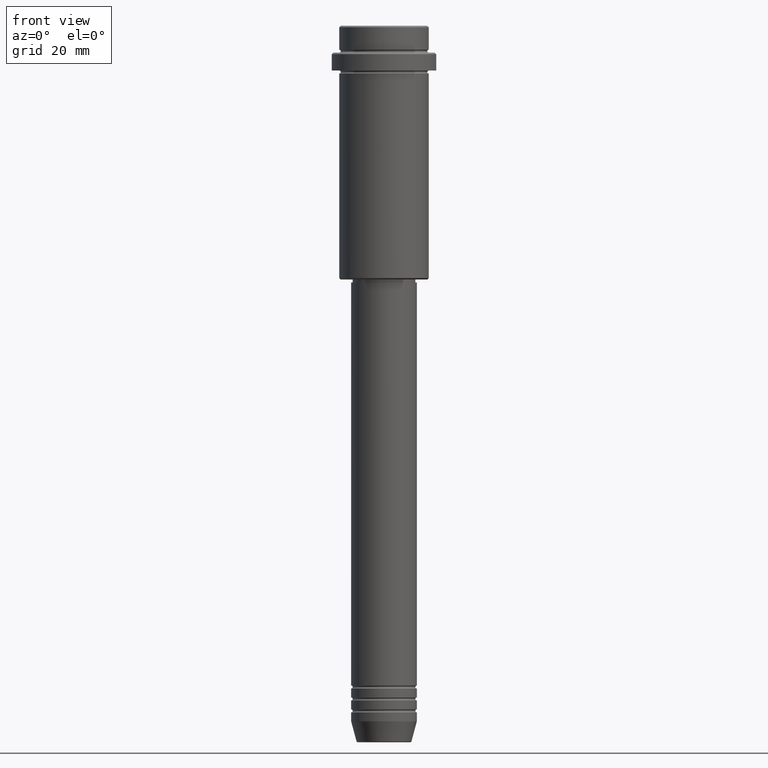
[diagram: clean part render]
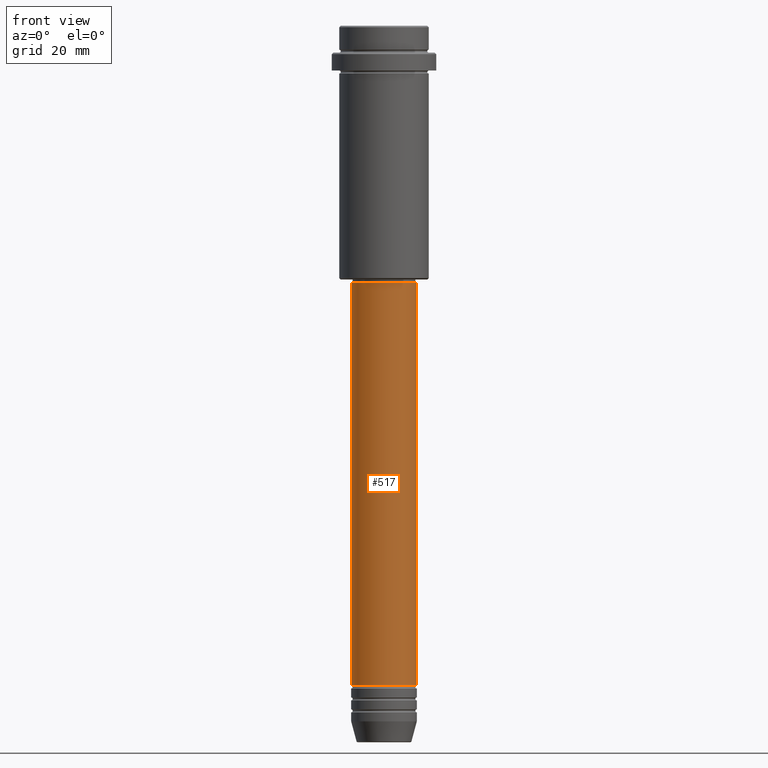
[diagram: same view with one face highlighted and labeled with its STEP entity id]
A machine part, front view. The second image highlights one B-rep face of the part: STEP entity #517.
In plain terms, the highlighted cylindrical surface (edge-blend (fillet) strip) has radius 11 mm, axis along (-0, -0, 1).
Its self-contained STEP definition (entity closure, byte-faithful):
#12 = AXIS2_PLACEMENT_3D ( 'NONE', #1003, #681, #1138 ) ;
#67 = VERTEX_POINT ( 'NONE', #1196 ) ;
#135 = AXIS2_PLACEMENT_3D ( 'NONE', #792, #1030, #240 ) ;
#142 = VECTOR ( 'NONE', #858, 1000.000000000000000 ) ;
#212 = DIRECTION ( 'NONE',  ( 1.000000000000000000, 0.000000000000000000, 0.000000000000000000 ) ) ;
#240 = DIRECTION ( 'NONE',  ( 1.000000000000000000, 0.000000000000000000, 0.000000000000000000 ) ) ;
#271 = EDGE_CURVE ( 'NONE', #1309, #502, #1088, .T. ) ;
#317 = CARTESIAN_POINT ( 'NONE',  ( -10.99999999999999822, 1.347111479062088207E-15, -86.00000000000000000 ) ) ;
#321 = DIRECTION ( 'NONE',  ( -0.000000000000000000, -0.000000000000000000, 1.000000000000000000 ) ) ;
#432 = CARTESIAN_POINT ( 'NONE',  ( 11.00000000000000000, 0.000000000000000000, 0.000000000000000000 ) ) ;
#502 = VERTEX_POINT ( 'NONE', #1342 ) ;
#517 = ADVANCED_FACE ( 'NONE', ( #791 ), #1313, .T. ) ;
#578 = VECTOR ( 'NONE', #321, 1000.000000000000000 ) ;
#652 = ORIENTED_EDGE ( 'NONE', *, *, #271, .F. ) ;
#681 = DIRECTION ( 'NONE',  ( -0.000000000000000000, -0.000000000000000000, 1.000000000000000000 ) ) ;
#692 = ORIENTED_EDGE ( 'NONE', *, *, #796, .T. ) ;
#759 = LINE ( 'NONE', #432, #142 ) ;
#791 = FACE_OUTER_BOUND ( 'NONE', #799, .T. ) ;
#792 = CARTESIAN_POINT ( 'NONE',  ( 0.000000000000000000, 0.000000000000000000, -86.00000000000000000 ) ) ;
#796 = EDGE_CURVE ( 'NONE', #67, #979, #1146, .T. ) ;
#799 = EDGE_LOOP ( 'NONE', ( #889, #692, #1412, #652 ) ) ;
#858 = DIRECTION ( 'NONE',  ( -0.000000000000000000, -0.000000000000000000, 1.000000000000000000 ) ) ;
#889 = ORIENTED_EDGE ( 'NONE', *, *, #932, .F. ) ;
#932 = EDGE_CURVE ( 'NONE', #67, #1309, #995, .T. ) ;
#979 = VERTEX_POINT ( 'NONE', #990 ) ;
#990 = CARTESIAN_POINT ( 'NONE',  ( 11.00000000000000000, 0.000000000000000000, -220.9999999999998863 ) ) ;
#995 = LINE ( 'NONE', #1316, #578 ) ;
#1003 = CARTESIAN_POINT ( 'NONE',  ( 0.000000000000000000, 0.000000000000000000, 0.000000000000000000 ) ) ;
#1030 = DIRECTION ( 'NONE',  ( -0.000000000000000000, -0.000000000000000000, 1.000000000000000000 ) ) ;
#1088 = CIRCLE ( 'NONE', #135, 10.99999999999999822 ) ;
#1138 = DIRECTION ( 'NONE',  ( 1.000000000000000000, 0.000000000000000000, 0.000000000000000000 ) ) ;
#1146 = CIRCLE ( 'NONE', #1187, 11.00000000000000000 ) ;
#1173 = CARTESIAN_POINT ( 'NONE',  ( 0.000000000000000000, 0.000000000000000000, -220.9999999999998863 ) ) ;
#1186 = DIRECTION ( 'NONE',  ( -0.000000000000000000, -0.000000000000000000, 1.000000000000000000 ) ) ;
#1187 = AXIS2_PLACEMENT_3D ( 'NONE', #1173, #1186, #212 ) ;
#1196 = CARTESIAN_POINT ( 'NONE',  ( -11.00000000000000000, 1.347111479062088405E-15, -220.9999999999998863 ) ) ;
#1309 = VERTEX_POINT ( 'NONE', #317 ) ;
#1313 = CYLINDRICAL_SURFACE ( 'NONE', #12, 11.00000000000000000 ) ;
#1316 = CARTESIAN_POINT ( 'NONE',  ( -11.00000000000000000, 1.347111479062088405E-15, 0.000000000000000000 ) ) ;
#1342 = CARTESIAN_POINT ( 'NONE',  ( 10.99999999999999822, 0.000000000000000000, -86.00000000000000000 ) ) ;
#1412 = ORIENTED_EDGE ( 'NONE', *, *, #1416, .T. ) ;
#1416 = EDGE_CURVE ( 'NONE', #979, #502, #759, .T. ) ;